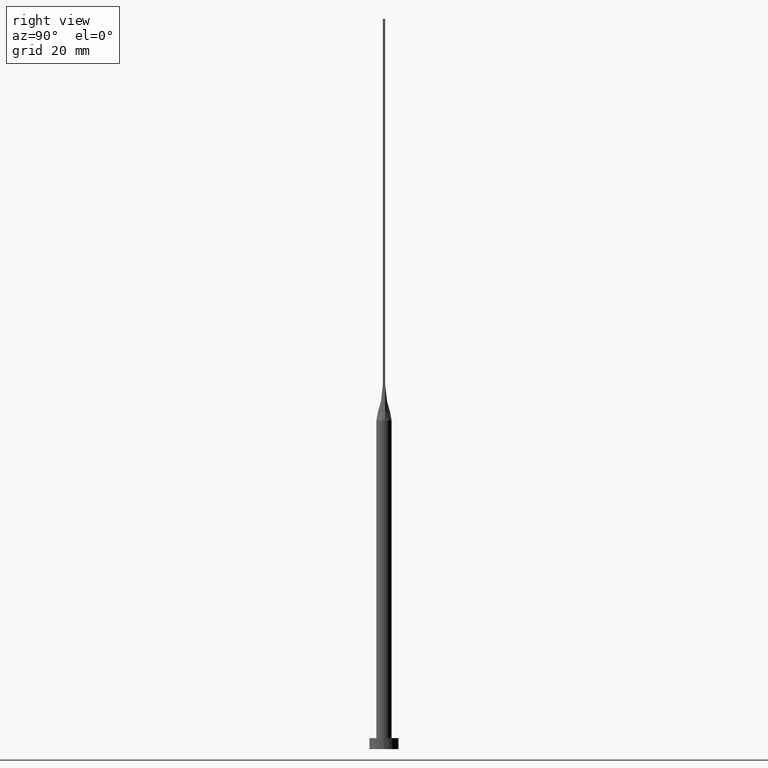
[diagram: clean part render]
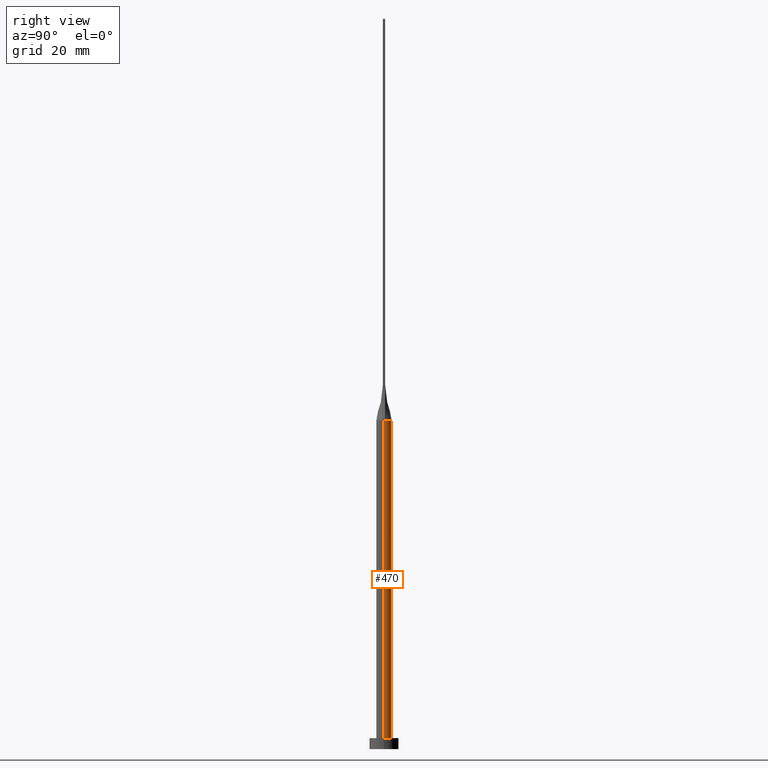
[diagram: same view with one face highlighted and labeled with its STEP entity id]
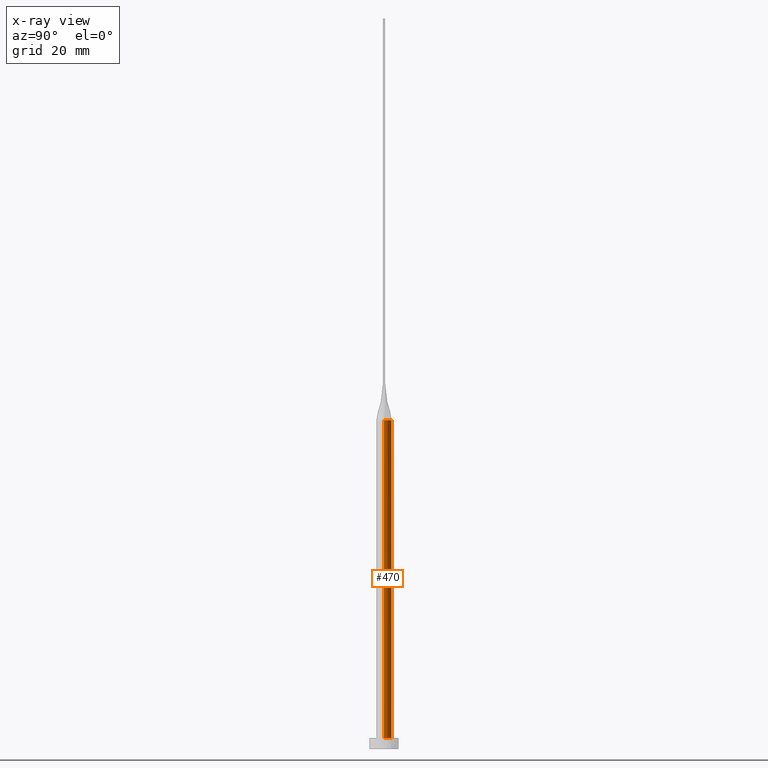
[diagram: x-ray of the same camera — body ghosted, the highlighted face saturated]
A machine part, right view. The second image highlights one B-rep face of the part: STEP entity #470.
The next image is the same camera in x-ray: the body ghosted, the highlighted face saturated — about 0% of this face is hidden behind the body in this view.
In plain terms, the highlighted cylindrical surface (edge-blend (fillet) strip) has radius 2.1 mm, axis along (-0, -0, -1).
Its self-contained STEP definition (entity closure, byte-faithful):
#1 = ORIENTED_EDGE ( 'NONE', *, *, #242, .F. ) ;
#2 = CARTESIAN_POINT ( 'NONE',  ( 1.819451111325471215, 1.069832718648841885, 89.99999999999994316 ) ) ;
#28 = CARTESIAN_POINT ( 'NONE',  ( -1.819451111325472326, 1.069832718648841885, 90.00000000000000000 ) ) ;
#40 = EDGE_CURVE ( 'NONE', #301, #91, #194, .T. ) ;
#42 = CARTESIAN_POINT ( 'NONE',  ( -2.100000000000000089, 0.000000000000000000, 3.000000000000000000 ) ) ;
#44 = CARTESIAN_POINT ( 'NONE',  ( 0.000000000000000000, 0.000000000000000000, 90.00000000000000000 ) ) ;
#60 = CARTESIAN_POINT ( 'NONE',  ( 2.100000000000000089, 2.571758278209441957E-16, 3.000000000000000000 ) ) ;
#61 = CARTESIAN_POINT ( 'NONE',  ( 0.2990728642939458615, 2.100000000000000089, 90.00000000000002842 ) ) ;
#63 = EDGE_CURVE ( 'NONE', #311, #288, #158, .T. ) ;
#67 = ORIENTED_EDGE ( 'NONE', *, *, #504, .T. ) ;
#69 = FACE_OUTER_BOUND ( 'NONE', #121, .T. ) ;
#72 = CARTESIAN_POINT ( 'NONE',  ( 0.000000000000000000, 0.000000000000000000, 90.00000000000000000 ) ) ;
#77 = CIRCLE ( 'NONE', #256, 2.100000000000000089 ) ;
#78 = DIRECTION ( 'NONE',  ( 1.000000000000000000, 0.000000000000000000, 0.000000000000000000 ) ) ;
#85 = ORIENTED_EDGE ( 'NONE', *, *, #257, .F. ) ;
#91 = VERTEX_POINT ( 'NONE', #436 ) ;
#97 = CARTESIAN_POINT ( 'NONE',  ( 2.074471112824316510, 0.3275477247839024275, 90.00000000000000000 ) ) ;
#111 = CARTESIAN_POINT ( 'NONE',  ( -2.074476228699557279, 0.3275484103472254827, 90.00000000000000000 ) ) ;
#115 = VERTEX_POINT ( 'NONE', #111 ) ;
#121 = EDGE_LOOP ( 'NONE', ( #197, #343, #67, #136, #85, #1 ) ) ;
#128 = CARTESIAN_POINT ( 'NONE',  ( 1.342614810400549086, 1.634425746458369799, 90.00000000000001421 ) ) ;
#136 = ORIENTED_EDGE ( 'NONE', *, *, #63, .F. ) ;
#138 = CIRCLE ( 'NONE', #577, 2.100000000000000089 ) ;
#158 = LINE ( 'NONE', #247, #468 ) ;
#176 = CARTESIAN_POINT ( 'NONE',  ( 1.692271541701912296, 1.268928319070362187, 89.99999999999998579 ) ) ;
#194 = CIRCLE ( 'NONE', #496, 2.100000000000000089 ) ;
#197 = ORIENTED_EDGE ( 'NONE', *, *, #40, .F. ) ;
#201 = DIRECTION ( 'NONE',  ( -1.000000000000000000, 0.000000000000000000, 0.000000000000000000 ) ) ;
#204 = CARTESIAN_POINT ( 'NONE',  ( -1.996565546919327527, 0.6845950695482648785, 90.00000000000002842 ) ) ;
#216 = CARTESIAN_POINT ( 'NONE',  ( 2.099921383865792635, 5.174786140116233847E-16, 90.00000000000000000 ) ) ;
#231 = B_SPLINE_CURVE_WITH_KNOTS ( 'NONE', 3,
 ( #97, #400, #492, #2, #176, #128, #296, #471, #61, #515, #274, #240, #431, #425, #28, #204, #337, #297 ),
 .UNSPECIFIED., .F., .F.,
 ( 4, 2, 2, 2, 2, 2, 2, 2, 4 ),
 ( 0.000000000000000000, 0.1249999999999999722, 0.2500000000000000000, 0.3750000000000000000, 0.5000000000000000000, 0.6250000000000000000, 0.7500000000000000000, 0.8750000000000000000, 1.000000000000000000 ),
 .UNSPECIFIED. ) ;
#240 = CARTESIAN_POINT ( 'NONE',  ( -1.119115561862284558, 1.799829988698611327, 89.99999999999997158 ) ) ;
#242 = EDGE_CURVE ( 'NONE', #91, #115, #231, .T. ) ;
#245 = DIRECTION ( 'NONE',  ( -0.000000000000000000, -0.000000000000000000, -1.000000000000000000 ) ) ;
#247 = CARTESIAN_POINT ( 'NONE',  ( -2.100000000000000089, 0.000000000000000000, 90.00000000000000000 ) ) ;
#256 = AXIS2_PLACEMENT_3D ( 'NONE', #44, #359, #78 ) ;
#257 = EDGE_CURVE ( 'NONE', #115, #311, #77, .T. ) ;
#265 = AXIS2_PLACEMENT_3D ( 'NONE', #72, #245, #201 ) ;
#266 = DIRECTION ( 'NONE',  ( 1.000000000000000000, 0.000000000000000000, 0.000000000000000000 ) ) ;
#274 = CARTESIAN_POINT ( 'NONE',  ( -0.5970064165420507774, 2.033566071616263127, 89.99999999999997158 ) ) ;
#288 = VERTEX_POINT ( 'NONE', #42 ) ;
#296 = CARTESIAN_POINT ( 'NONE',  ( 1.119115561862284558, 1.799829988698611105, 89.99999999999997158 ) ) ;
#297 = CARTESIAN_POINT ( 'NONE',  ( -2.074476228699557279, 0.3275484103472254827, 90.00000000000000000 ) ) ;
#301 = VERTEX_POINT ( 'NONE', #216 ) ;
#311 = VERTEX_POINT ( 'NONE', #440 ) ;
#315 = CARTESIAN_POINT ( 'NONE',  ( 2.100000000000000089, 2.571758278209441957E-16, 90.00000000000000000 ) ) ;
#328 = VERTEX_POINT ( 'NONE', #60 ) ;
#334 = CARTESIAN_POINT ( 'NONE',  ( 0.000000000000000000, 0.000000000000000000, 3.000000000000000000 ) ) ;
#337 = CARTESIAN_POINT ( 'NONE',  ( -2.047342767731585855, 0.4982646475365663519, 90.00000000000000000 ) ) ;
#343 = ORIENTED_EDGE ( 'NONE', *, *, #394, .T. ) ;
#346 = DIRECTION ( 'NONE',  ( 1.000000000000000000, 0.000000000000000000, 0.000000000000000000 ) ) ;
#359 = DIRECTION ( 'NONE',  ( 0.000000000000000000, 0.000000000000000000, 1.000000000000000000 ) ) ;
#363 = DIRECTION ( 'NONE',  ( -0.000000000000000000, -0.000000000000000000, -1.000000000000000000 ) ) ;
#377 = DIRECTION ( 'NONE',  ( 0.000000000000000000, 0.000000000000000000, 1.000000000000000000 ) ) ;
#384 = CARTESIAN_POINT ( 'NONE',  ( 0.000000000000000000, 0.000000000000000000, 90.00000000000000000 ) ) ;
#394 = EDGE_CURVE ( 'NONE', #301, #328, #508, .T. ) ;
#400 = CARTESIAN_POINT ( 'NONE',  ( 2.047342767731584967, 0.4982646475365660188, 90.00000000000000000 ) ) ;
#425 = CARTESIAN_POINT ( 'NONE',  ( -1.692271541701912296, 1.268928319070362631, 90.00000000000001421 ) ) ;
#431 = CARTESIAN_POINT ( 'NONE',  ( -1.342614810400549308, 1.634425746458370021, 90.00000000000002842 ) ) ;
#436 = CARTESIAN_POINT ( 'NONE',  ( 2.074471112824316510, 0.3275477247839024275, 90.00000000000000000 ) ) ;
#440 = CARTESIAN_POINT ( 'NONE',  ( -2.099921383865792635, -5.254633567926592411E-16, 90.00000000000000000 ) ) ;
#459 = VECTOR ( 'NONE', #363, 1000.000000000000000 ) ;
#468 = VECTOR ( 'NONE', #575, 1000.000000000000000 ) ;
#470 = ADVANCED_FACE ( 'NONE', ( #69 ), #481, .T. ) ;
#471 = CARTESIAN_POINT ( 'NONE',  ( 0.5970064165420508884, 2.033566071616262683, 89.99999999999997158 ) ) ;
#481 = CYLINDRICAL_SURFACE ( 'NONE', #265, 2.100000000000000089 ) ;
#492 = CARTESIAN_POINT ( 'NONE',  ( 1.996565546919327527, 0.6845950695482651005, 90.00000000000001421 ) ) ;
#496 = AXIS2_PLACEMENT_3D ( 'NONE', #384, #568, #346 ) ;
#504 = EDGE_CURVE ( 'NONE', #328, #288, #138, .T. ) ;
#508 = LINE ( 'NONE', #315, #459 ) ;
#515 = CARTESIAN_POINT ( 'NONE',  ( -0.2990728642939458615, 2.100000000000000089, 90.00000000000001421 ) ) ;
#568 = DIRECTION ( 'NONE',  ( 0.000000000000000000, 0.000000000000000000, 1.000000000000000000 ) ) ;
#575 = DIRECTION ( 'NONE',  ( -0.000000000000000000, -0.000000000000000000, -1.000000000000000000 ) ) ;
#577 = AXIS2_PLACEMENT_3D ( 'NONE', #334, #377, #266 ) ;